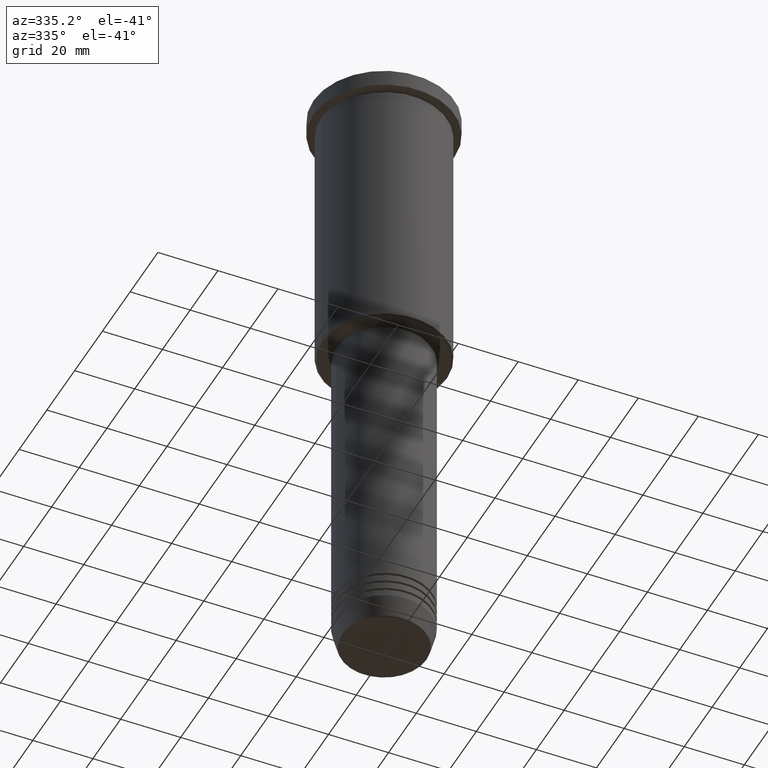
[diagram: clean part render]
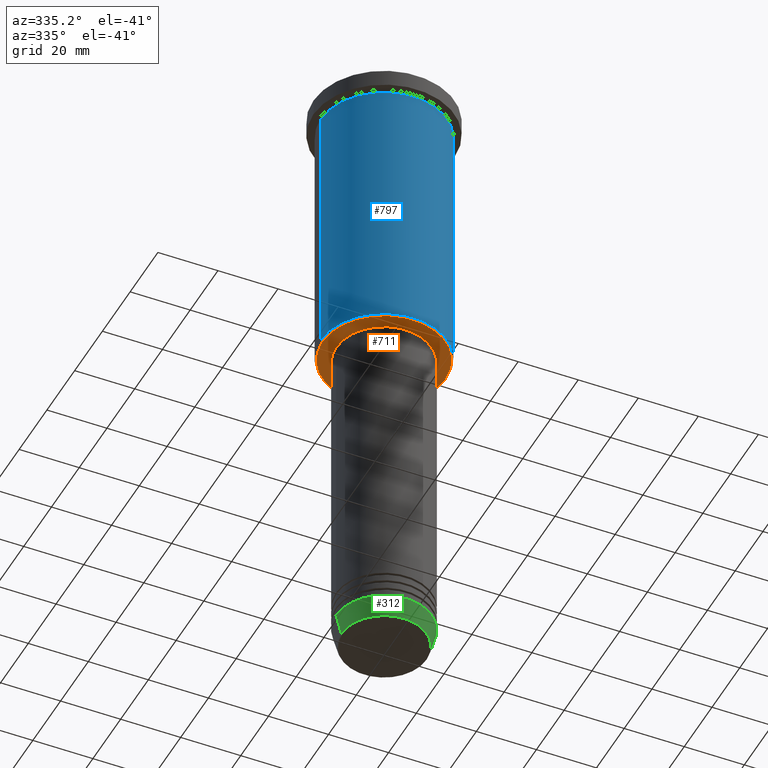
[diagram: same view with three faces highlighted in distinct colors, each labeled with its STEP entity id]
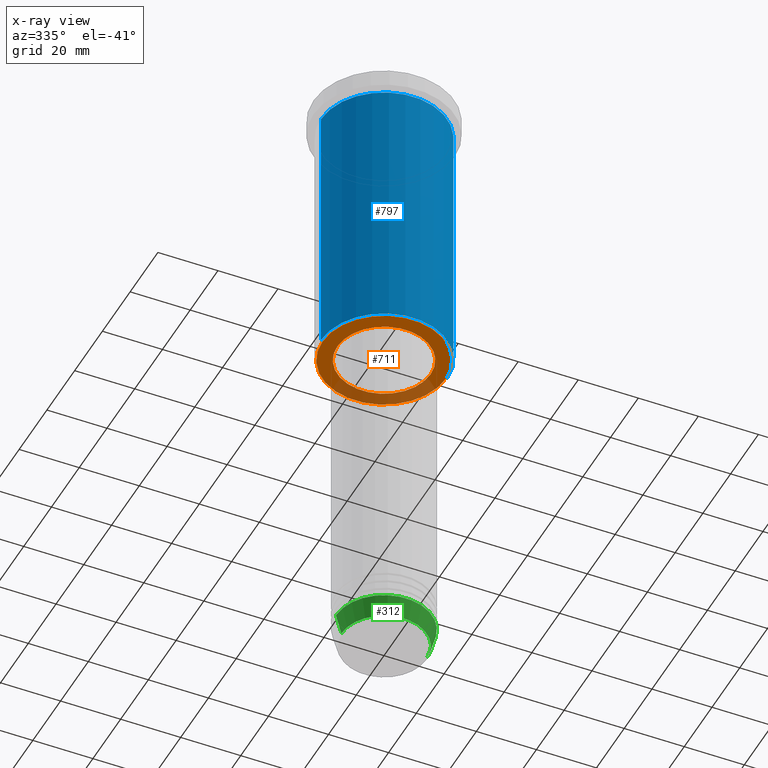
[diagram: x-ray of the same camera — body ghosted, the three highlighted faces saturated]
A machine part, auxiliary view with three faces highlighted in distinct colors.
The next image is the same camera in x-ray (body ghosted, the three faces saturated) — at least one of them is partly hidden behind the body in this view.
Their STEP definitions:

[orange] entity #711 — the highlighted planar face has unit normal (0, 0, -1).
#4 = ORIENTED_EDGE ( 'NONE', *, *, #138, .T. ) ;
#18 = VERTEX_POINT ( 'NONE', #841 ) ;
#49 = DIRECTION ( 'NONE',  ( 0.000000000000000000, 0.000000000000000000, -1.000000000000000000 ) ) ;
#75 = CARTESIAN_POINT ( 'NONE',  ( 0.000000000000000000, 0.000000000000000000, -96.00000000000000000 ) ) ;
#115 = ORIENTED_EDGE ( 'NONE', *, *, #994, .T. ) ;
#138 = EDGE_CURVE ( 'NONE', #789, #652, #663, .T. ) ;
#185 = CARTESIAN_POINT ( 'NONE',  ( 0.000000000000000000, 21.00000000000000000, -96.00000000000000000 ) ) ;
#193 = VERTEX_POINT ( 'NONE', #617 ) ;
#204 = CIRCLE ( 'NONE', #911, 20.49999999999998934 ) ;
#205 = PLANE ( 'NONE',  #858 ) ;
#209 = CARTESIAN_POINT ( 'NONE',  ( 0.000000000000000000, 0.000000000000000000, -96.00000000000000000 ) ) ;
#216 = ORIENTED_EDGE ( 'NONE', *, *, #1125, .T. ) ;
#226 = CIRCLE ( 'NONE', #591, 15.50000000000000000 ) ;
#244 = DIRECTION ( 'NONE',  ( 0.000000000000000000, 0.000000000000000000, -1.000000000000000000 ) ) ;
#289 = DIRECTION ( 'NONE',  ( -0.000000000000000000, -0.000000000000000000, 1.000000000000000000 ) ) ;
#441 = CIRCLE ( 'NONE', #587, 15.50000000000000000 ) ;
#479 = EDGE_CURVE ( 'NONE', #193, #18, #441, .T. ) ;
#524 = CARTESIAN_POINT ( 'NONE',  ( 0.000000000000000000, 0.000000000000000000, -96.00000000000000000 ) ) ;
#533 = FACE_OUTER_BOUND ( 'NONE', #953, .T. ) ;
#547 = FACE_BOUND ( 'NONE', #555, .T. ) ;
#555 = EDGE_LOOP ( 'NONE', ( #1009, #216 ) ) ;
#587 = AXIS2_PLACEMENT_3D ( 'NONE', #75, #1142, #716 ) ;
#590 = DIRECTION ( 'NONE',  ( -1.000000000000000000, 0.000000000000000000, 0.000000000000000000 ) ) ;
#591 = AXIS2_PLACEMENT_3D ( 'NONE', #209, #289, #1107 ) ;
#595 = CARTESIAN_POINT ( 'NONE',  ( -20.49999999999998934, 2.541142108230757480E-15, -96.00000000000000000 ) ) ;
#617 = CARTESIAN_POINT ( 'NONE',  ( 15.50000000000000000, 0.000000000000000000, -96.00000000000000000 ) ) ;
#652 = VERTEX_POINT ( 'NONE', #1031 ) ;
#663 = CIRCLE ( 'NONE', #1081, 20.49999999999998934 ) ;
#711 = ADVANCED_FACE ( 'NONE', ( #533, #547 ), #205, .T. ) ;
#716 = DIRECTION ( 'NONE',  ( 1.000000000000000000, 0.000000000000000000, 0.000000000000000000 ) ) ;
#735 = DIRECTION ( 'NONE',  ( -1.000000000000000000, 0.000000000000000000, -0.000000000000000000 ) ) ;
#789 = VERTEX_POINT ( 'NONE', #595 ) ;
#841 = CARTESIAN_POINT ( 'NONE',  ( -15.50000000000000000, 1.898202538678397557E-15, -96.00000000000000000 ) ) ;
#858 = AXIS2_PLACEMENT_3D ( 'NONE', #185, #896, #735 ) ;
#896 = DIRECTION ( 'NONE',  ( 0.000000000000000000, 0.000000000000000000, -1.000000000000000000 ) ) ;
#911 = AXIS2_PLACEMENT_3D ( 'NONE', #1133, #244, #590 ) ;
#953 = EDGE_LOOP ( 'NONE', ( #115, #4 ) ) ;
#994 = EDGE_CURVE ( 'NONE', #652, #789, #204, .T. ) ;
#1009 = ORIENTED_EDGE ( 'NONE', *, *, #479, .T. ) ;
#1031 = CARTESIAN_POINT ( 'NONE',  ( 20.49999999999998934, 0.000000000000000000, -96.00000000000000000 ) ) ;
#1050 = DIRECTION ( 'NONE',  ( -1.000000000000000000, 0.000000000000000000, 0.000000000000000000 ) ) ;
#1081 = AXIS2_PLACEMENT_3D ( 'NONE', #524, #49, #1050 ) ;
#1107 = DIRECTION ( 'NONE',  ( 1.000000000000000000, 0.000000000000000000, 0.000000000000000000 ) ) ;
#1125 = EDGE_CURVE ( 'NONE', #18, #193, #226, .T. ) ;
#1133 = CARTESIAN_POINT ( 'NONE',  ( 0.000000000000000000, 0.000000000000000000, -96.00000000000000000 ) ) ;
#1142 = DIRECTION ( 'NONE',  ( -0.000000000000000000, -0.000000000000000000, 1.000000000000000000 ) ) ;

[blue] entity #797 — the highlighted cylindrical surface (partial cylindrical patch) has radius 21 mm, axis along (-0, -0, 1).
#10 = EDGE_LOOP ( 'NONE', ( #1056, #933, #638, #1016 ) ) ;
#19 = AXIS2_PLACEMENT_3D ( 'NONE', #445, #718, #1177 ) ;
#36 = VERTEX_POINT ( 'NONE', #153 ) ;
#63 = DIRECTION ( 'NONE',  ( -0.000000000000000000, -0.000000000000000000, 1.000000000000000000 ) ) ;
#149 = VECTOR ( 'NONE', #63, 1000.000000000000000 ) ;
#153 = CARTESIAN_POINT ( 'NONE',  ( -21.00000000000000000, 2.571758278209441661E-15, -95.50000000000000000 ) ) ;
#161 = DIRECTION ( 'NONE',  ( -0.000000000000000000, -0.000000000000000000, 1.000000000000000000 ) ) ;
#262 = CARTESIAN_POINT ( 'NONE',  ( -21.00000000000000000, 2.571758278209441661E-15, 0.000000000000000000 ) ) ;
#310 = CYLINDRICAL_SURFACE ( 'NONE', #493, 21.00000000000000000 ) ;
#332 = DIRECTION ( 'NONE',  ( -0.000000000000000000, -0.000000000000000000, 1.000000000000000000 ) ) ;
#445 = CARTESIAN_POINT ( 'NONE',  ( 0.000000000000000000, 0.000000000000000000, -95.50000000000000000 ) ) ;
#454 = CARTESIAN_POINT ( 'NONE',  ( 21.00000000000000000, 0.000000000000000000, -6.999999999999994671 ) ) ;
#456 = VECTOR ( 'NONE', #161, 1000.000000000000000 ) ;
#493 = AXIS2_PLACEMENT_3D ( 'NONE', #1117, #332, #839 ) ;
#569 = FACE_OUTER_BOUND ( 'NONE', #10, .T. ) ;
#608 = CIRCLE ( 'NONE', #19, 21.00000000000000000 ) ;
#615 = VERTEX_POINT ( 'NONE', #687 ) ;
#616 = CARTESIAN_POINT ( 'NONE',  ( 21.00000000000000000, 0.000000000000000000, 0.000000000000000000 ) ) ;
#618 = EDGE_CURVE ( 'NONE', #714, #850, #1049, .T. ) ;
#638 = ORIENTED_EDGE ( 'NONE', *, *, #618, .T. ) ;
#676 = CARTESIAN_POINT ( 'NONE',  ( 0.000000000000000000, 0.000000000000000000, -6.999999999999994671 ) ) ;
#687 = CARTESIAN_POINT ( 'NONE',  ( -21.00000000000000000, 2.571758278209441661E-15, -6.999999999999994671 ) ) ;
#714 = VERTEX_POINT ( 'NONE', #1095 ) ;
#718 = DIRECTION ( 'NONE',  ( -0.000000000000000000, -0.000000000000000000, 1.000000000000000000 ) ) ;
#797 = ADVANCED_FACE ( 'NONE', ( #569 ), #310, .T. ) ;
#839 = DIRECTION ( 'NONE',  ( 1.000000000000000000, 0.000000000000000000, 0.000000000000000000 ) ) ;
#850 = VERTEX_POINT ( 'NONE', #454 ) ;
#856 = DIRECTION ( 'NONE',  ( 1.000000000000000000, 0.000000000000000000, 0.000000000000000000 ) ) ;
#879 = AXIS2_PLACEMENT_3D ( 'NONE', #676, #1118, #856 ) ;
#933 = ORIENTED_EDGE ( 'NONE', *, *, #1108, .T. ) ;
#961 = EDGE_CURVE ( 'NONE', #36, #615, #1150, .T. ) ;
#1016 = ORIENTED_EDGE ( 'NONE', *, *, #1154, .F. ) ;
#1049 = LINE ( 'NONE', #616, #456 ) ;
#1056 = ORIENTED_EDGE ( 'NONE', *, *, #961, .F. ) ;
#1095 = CARTESIAN_POINT ( 'NONE',  ( 21.00000000000000000, 0.000000000000000000, -95.50000000000000000 ) ) ;
#1108 = EDGE_CURVE ( 'NONE', #36, #714, #608, .T. ) ;
#1117 = CARTESIAN_POINT ( 'NONE',  ( 0.000000000000000000, 0.000000000000000000, 0.000000000000000000 ) ) ;
#1118 = DIRECTION ( 'NONE',  ( -0.000000000000000000, -0.000000000000000000, 1.000000000000000000 ) ) ;
#1150 = LINE ( 'NONE', #262, #149 ) ;
#1154 = EDGE_CURVE ( 'NONE', #615, #850, #1165, .T. ) ;
#1165 = CIRCLE ( 'NONE', #879, 21.00000000000000000 ) ;
#1177 = DIRECTION ( 'NONE',  ( -1.000000000000000000, 0.000000000000000000, 0.000000000000000000 ) ) ;

[green] entity #312 — the highlighted conical surface has half-angle 15 deg.
#9 = LINE ( 'NONE', #549, #107 ) ;
#51 = CARTESIAN_POINT ( 'NONE',  ( -16.00000000000000000, 1.959434878635765131E-15, -204.0000000000000284 ) ) ;
#52 = DIRECTION ( 'NONE',  ( -0.2588190451025209060, 3.169619151431766790E-17, 0.9659258262890682012 ) ) ;
#107 = VECTOR ( 'NONE', #808, 1000.000000000000000 ) ;
#109 = DIRECTION ( 'NONE',  ( 1.000000000000000000, 0.000000000000000000, 0.000000000000000000 ) ) ;
#129 = CARTESIAN_POINT ( 'NONE',  ( 0.000000000000000000, 0.000000000000000000, -204.0000000000000284 ) ) ;
#147 = AXIS2_PLACEMENT_3D ( 'NONE', #1091, #636, #1143 ) ;
#239 = DIRECTION ( 'NONE',  ( 1.000000000000000000, 0.000000000000000000, 0.000000000000000000 ) ) ;
#249 = LINE ( 'NONE', #416, #386 ) ;
#256 = VERTEX_POINT ( 'NONE', #1115 ) ;
#265 = VERTEX_POINT ( 'NONE', #481 ) ;
#312 = ADVANCED_FACE ( 'NONE', ( #467 ), #314, .T. ) ;
#314 = CONICAL_SURFACE ( 'NONE', #763, 16.00000000000000000, 0.2617993877991495744 ) ;
#347 = CARTESIAN_POINT ( 'NONE',  ( -14.22365507213720015, 1.850665122131324520E-15, -210.6294095225512706 ) ) ;
#362 = VERTEX_POINT ( 'NONE', #347 ) ;
#374 = ORIENTED_EDGE ( 'NONE', *, *, #869, .T. ) ;
#386 = VECTOR ( 'NONE', #52, 1000.000000000000000 ) ;
#416 = CARTESIAN_POINT ( 'NONE',  ( -16.00000000000000000, 1.959434878635765131E-15, -204.0000000000000284 ) ) ;
#422 = EDGE_CURVE ( 'NONE', #362, #265, #644, .T. ) ;
#433 = ORIENTED_EDGE ( 'NONE', *, *, #1171, .F. ) ;
#467 = FACE_OUTER_BOUND ( 'NONE', #810, .T. ) ;
#481 = CARTESIAN_POINT ( 'NONE',  ( 14.22365507213720015, 0.000000000000000000, -210.6294095225512706 ) ) ;
#549 = CARTESIAN_POINT ( 'NONE',  ( 16.00000000000000000, 0.000000000000000000, -204.0000000000000284 ) ) ;
#579 = ORIENTED_EDGE ( 'NONE', *, *, #693, .F. ) ;
#636 = DIRECTION ( 'NONE',  ( -0.000000000000000000, -0.000000000000000000, 1.000000000000000000 ) ) ;
#637 = CARTESIAN_POINT ( 'NONE',  ( 0.000000000000000000, 0.000000000000000000, -204.0000000000000284 ) ) ;
#644 = CIRCLE ( 'NONE', #147, 14.22365507213720015 ) ;
#693 = EDGE_CURVE ( 'NONE', #767, #256, #907, .T. ) ;
#763 = AXIS2_PLACEMENT_3D ( 'NONE', #129, #853, #239 ) ;
#767 = VERTEX_POINT ( 'NONE', #51 ) ;
#808 = DIRECTION ( 'NONE',  ( 0.2588190451025209060, 0.000000000000000000, 0.9659258262890682012 ) ) ;
#810 = EDGE_LOOP ( 'NONE', ( #433, #901, #374, #579 ) ) ;
#853 = DIRECTION ( 'NONE',  ( -0.000000000000000000, -0.000000000000000000, 1.000000000000000000 ) ) ;
#869 = EDGE_CURVE ( 'NONE', #265, #256, #9, .T. ) ;
#901 = ORIENTED_EDGE ( 'NONE', *, *, #422, .T. ) ;
#907 = CIRCLE ( 'NONE', #1059, 16.00000000000000000 ) ;
#995 = DIRECTION ( 'NONE',  ( -0.000000000000000000, -0.000000000000000000, 1.000000000000000000 ) ) ;
#1059 = AXIS2_PLACEMENT_3D ( 'NONE', #637, #995, #109 ) ;
#1091 = CARTESIAN_POINT ( 'NONE',  ( 0.000000000000000000, 0.000000000000000000, -210.6294095225512706 ) ) ;
#1115 = CARTESIAN_POINT ( 'NONE',  ( 16.00000000000000000, 0.000000000000000000, -204.0000000000000284 ) ) ;
#1143 = DIRECTION ( 'NONE',  ( 1.000000000000000000, 0.000000000000000000, 0.000000000000000000 ) ) ;
#1171 = EDGE_CURVE ( 'NONE', #362, #767, #249, .T. ) ;